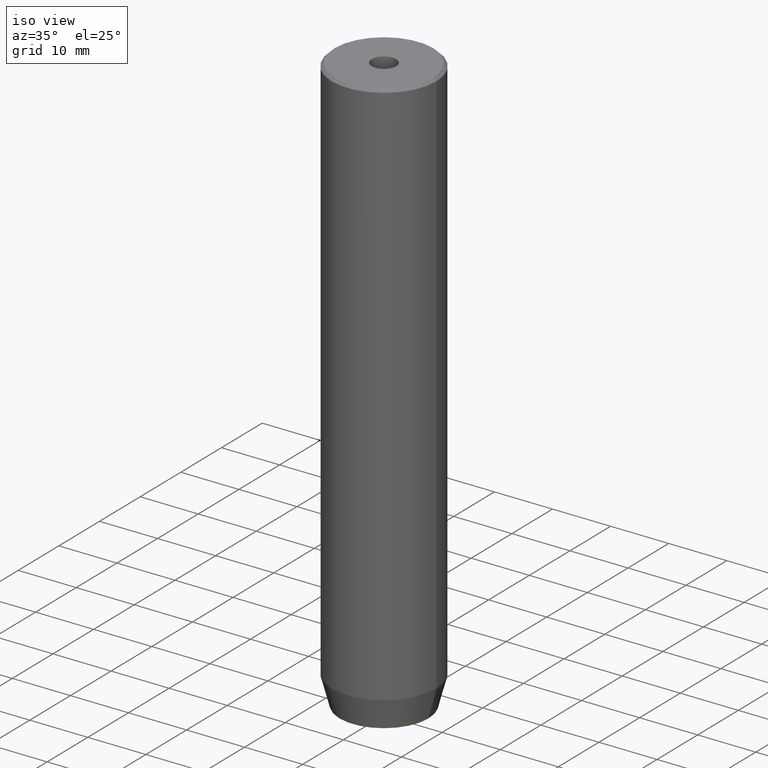
[diagram: clean part render]
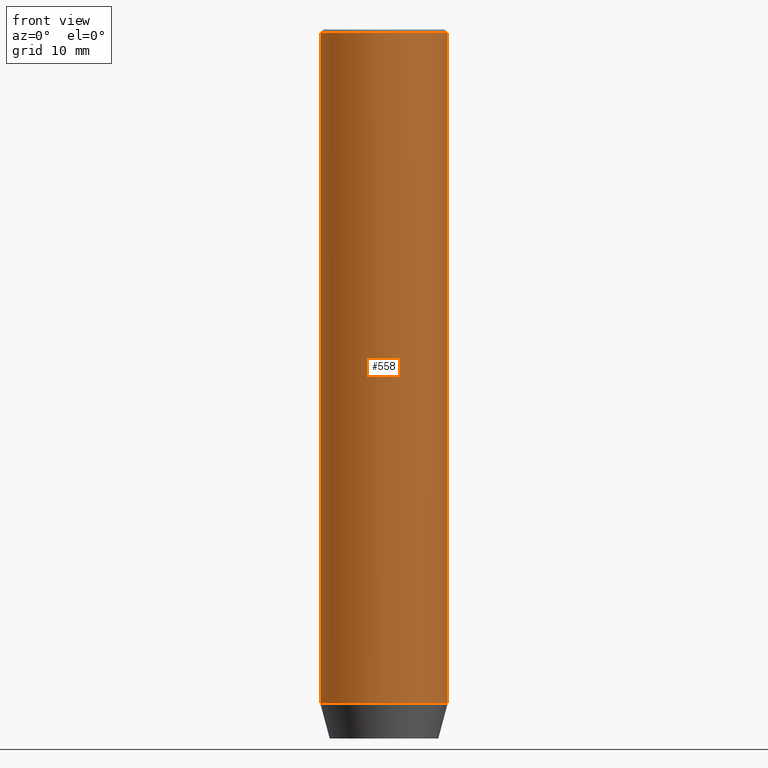
[diagram: tour spotlight — one face highlighted and labeled with its STEP entity id]
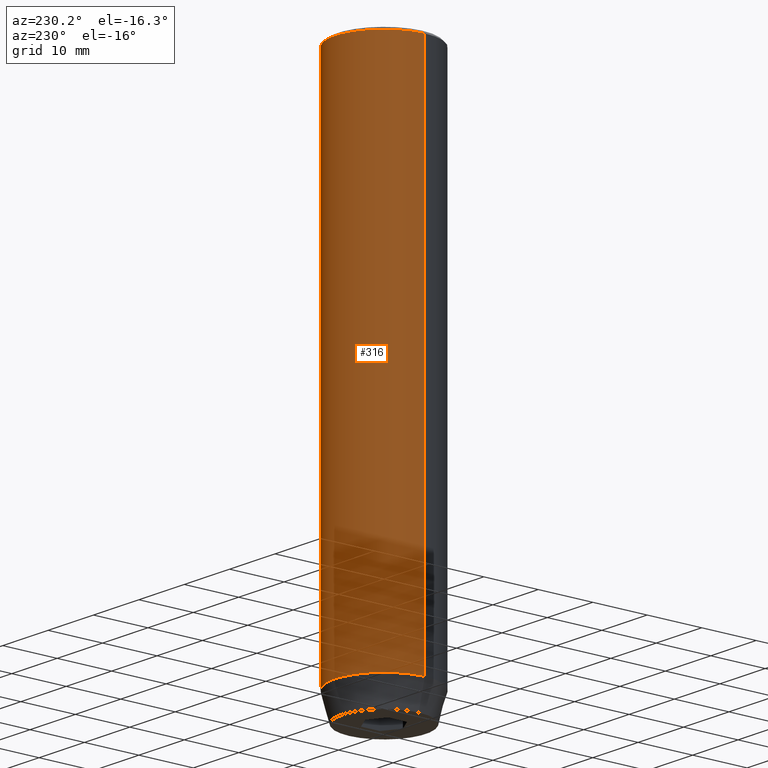
[diagram: tour spotlight — one face highlighted and labeled with its STEP entity id]
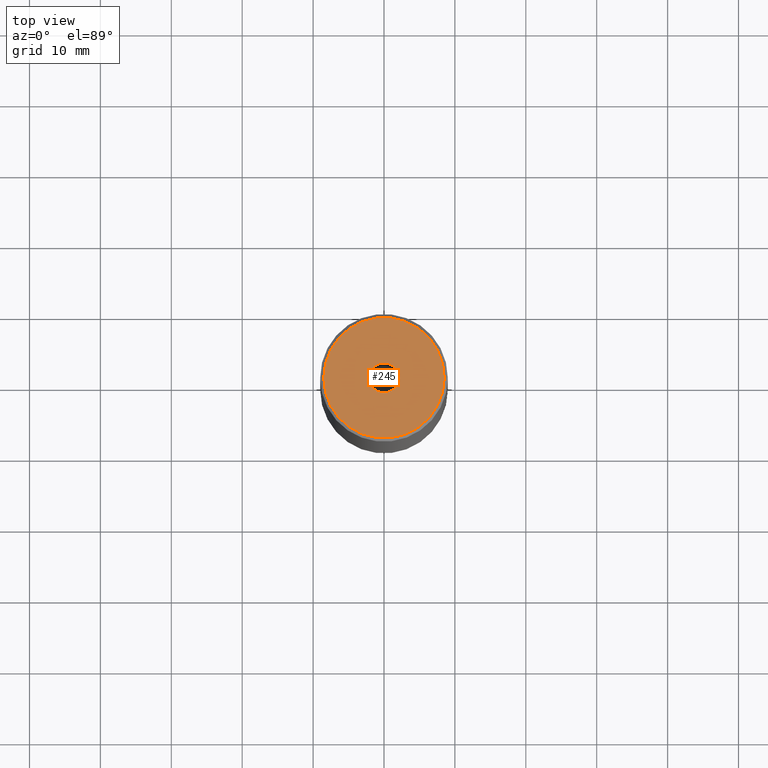
[diagram: tour spotlight — one face highlighted and labeled with its STEP entity id]
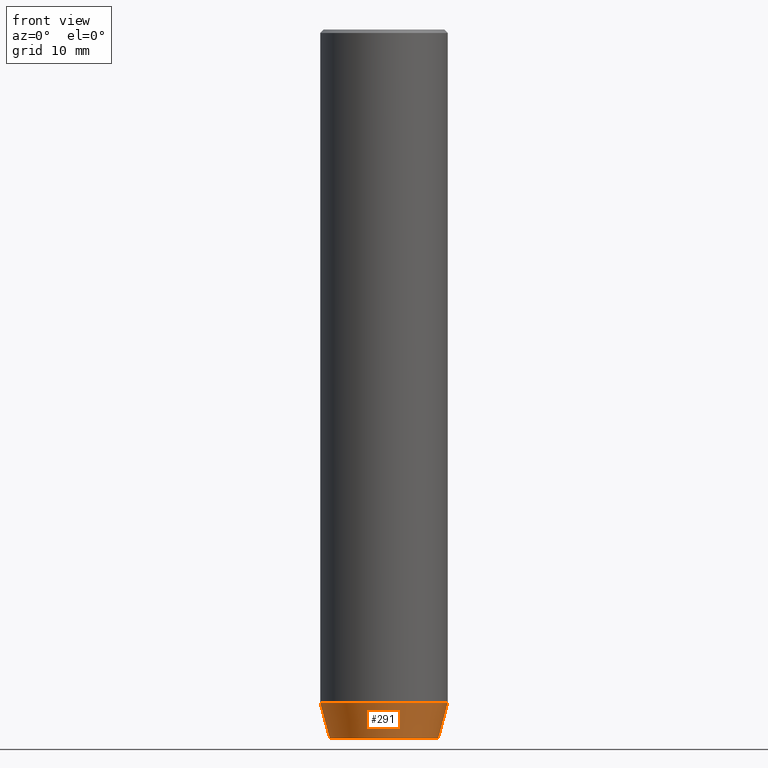
[diagram: tour spotlight — one face highlighted and labeled with its STEP entity id]
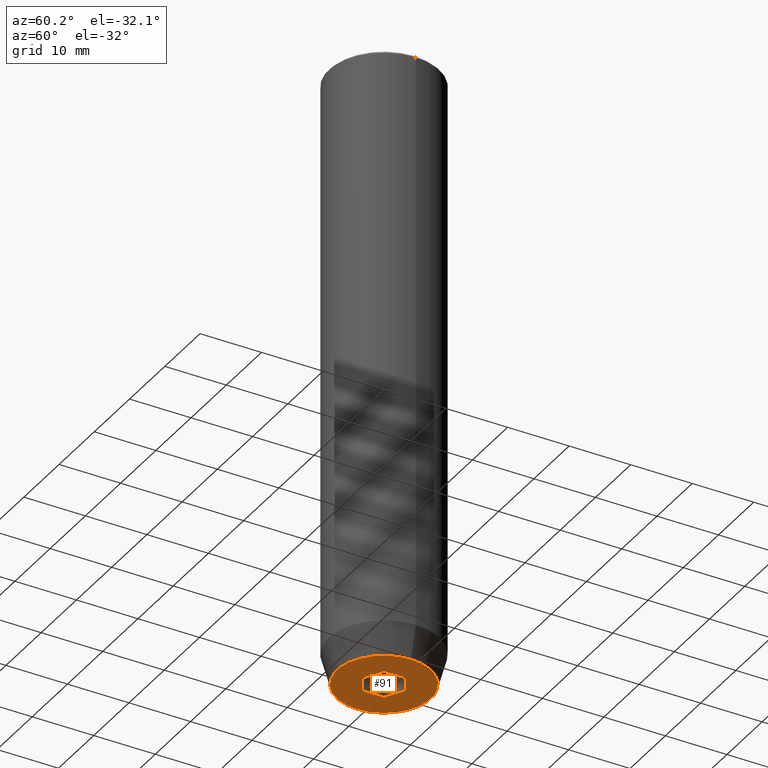
[diagram: tour spotlight — one face highlighted and labeled with its STEP entity id]
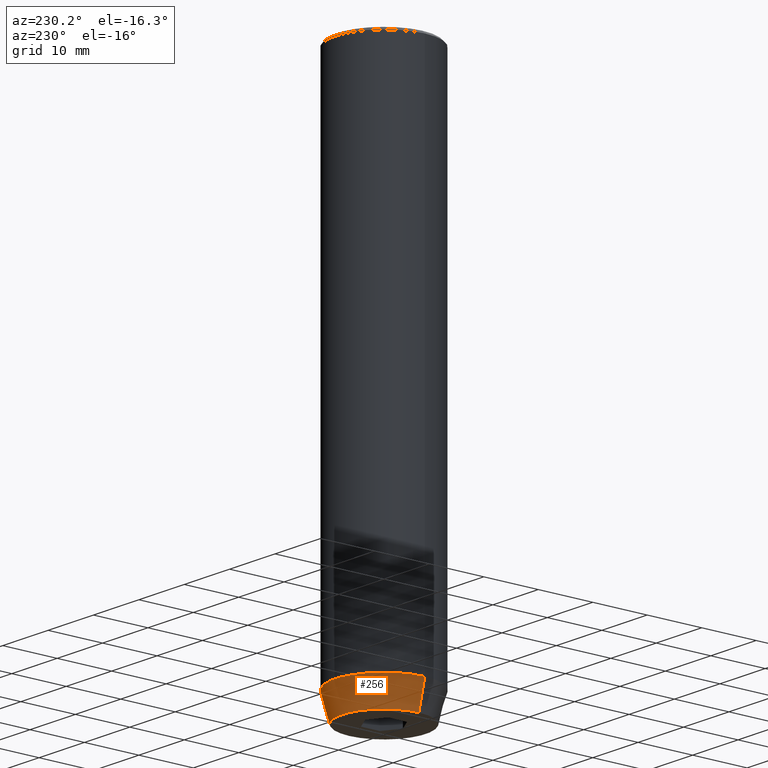
[diagram: tour spotlight — one face highlighted and labeled with its STEP entity id]
A machine part: a face-by-face anatomy tour. The part has 19 B-rep faces; the first image is the clean iso view, then the 6 largest visible faces are spotlighted one at a time (largest first), each with its STEP entity span.

Face 1 — front view, entity #558. In plain terms, the highlighted cylindrical surface (partial cylindrical patch) has radius 9 mm, axis along (-0, -0, 1).
Definition (entity closure, byte-faithful):
#19 = DIRECTION ( 'NONE',  ( 1.000000000000000000, 0.000000000000000000, 0.000000000000000000 ) ) ;
#43 = AXIS2_PLACEMENT_3D ( 'NONE', #346, #530, #219 ) ;
#49 = DIRECTION ( 'NONE',  ( 1.000000000000000000, 0.000000000000000000, 0.000000000000000000 ) ) ;
#53 = EDGE_CURVE ( 'NONE', #392, #407, #193, .T. ) ;
#58 = CARTESIAN_POINT ( 'NONE',  ( 0.000000000000000000, 0.000000000000000000, -95.00000000000000000 ) ) ;
#82 = DIRECTION ( 'NONE',  ( -0.000000000000000000, -0.000000000000000000, 1.000000000000000000 ) ) ;
#85 = VECTOR ( 'NONE', #100, 1000.000000000000000 ) ;
#87 = CARTESIAN_POINT ( 'NONE',  ( -9.000000000000000000, 1.102182119232617714E-15, -95.00000000000000000 ) ) ;
#100 = DIRECTION ( 'NONE',  ( -0.000000000000000000, -0.000000000000000000, 1.000000000000000000 ) ) ;
#123 = VECTOR ( 'NONE', #82, 1000.000000000000000 ) ;
#147 = EDGE_CURVE ( 'NONE', #392, #246, #388, .T. ) ;
#169 = ORIENTED_EDGE ( 'NONE', *, *, #147, .T. ) ;
#180 = CARTESIAN_POINT ( 'NONE',  ( 0.000000000000000000, 0.000000000000000000, 0.000000000000000000 ) ) ;
#192 = EDGE_LOOP ( 'NONE', ( #343, #169, #423, #450 ) ) ;
#193 = LINE ( 'NONE', #369, #85 ) ;
#214 = CARTESIAN_POINT ( 'NONE',  ( 9.000000000000000000, 0.000000000000000000, 0.000000000000000000 ) ) ;
#219 = DIRECTION ( 'NONE',  ( 1.000000000000000000, 0.000000000000000000, 0.000000000000000000 ) ) ;
#223 = AXIS2_PLACEMENT_3D ( 'NONE', #58, #244, #19 ) ;
#228 = FACE_OUTER_BOUND ( 'NONE', #192, .T. ) ;
#237 = DIRECTION ( 'NONE',  ( -0.000000000000000000, -0.000000000000000000, 1.000000000000000000 ) ) ;
#244 = DIRECTION ( 'NONE',  ( -0.000000000000000000, -0.000000000000000000, 1.000000000000000000 ) ) ;
#246 = VERTEX_POINT ( 'NONE', #303 ) ;
#303 = CARTESIAN_POINT ( 'NONE',  ( 9.000000000000000000, 0.000000000000000000, -95.00000000000000000 ) ) ;
#324 = EDGE_CURVE ( 'NONE', #471, #407, #444, .T. ) ;
#343 = ORIENTED_EDGE ( 'NONE', *, *, #53, .F. ) ;
#346 = CARTESIAN_POINT ( 'NONE',  ( 0.000000000000000000, 0.000000000000000000, -0.5000000000000091038 ) ) ;
#365 = CARTESIAN_POINT ( 'NONE',  ( 9.000000000000000000, 0.000000000000000000, -0.5000000000000091038 ) ) ;
#368 = EDGE_CURVE ( 'NONE', #246, #471, #401, .T. ) ;
#369 = CARTESIAN_POINT ( 'NONE',  ( -9.000000000000000000, 1.102182119232617714E-15, 0.000000000000000000 ) ) ;
#388 = CIRCLE ( 'NONE', #223, 9.000000000000000000 ) ;
#392 = VERTEX_POINT ( 'NONE', #87 ) ;
#401 = LINE ( 'NONE', #214, #123 ) ;
#407 = VERTEX_POINT ( 'NONE', #503 ) ;
#423 = ORIENTED_EDGE ( 'NONE', *, *, #368, .T. ) ;
#444 = CIRCLE ( 'NONE', #43, 9.000000000000000000 ) ;
#450 = ORIENTED_EDGE ( 'NONE', *, *, #324, .T. ) ;
#460 = CYLINDRICAL_SURFACE ( 'NONE', #516, 9.000000000000000000 ) ;
#471 = VERTEX_POINT ( 'NONE', #365 ) ;
#503 = CARTESIAN_POINT ( 'NONE',  ( -9.000000000000000000, 1.102182119232617714E-15, -0.5000000000000091038 ) ) ;
#516 = AXIS2_PLACEMENT_3D ( 'NONE', #180, #237, #49 ) ;
#530 = DIRECTION ( 'NONE',  ( 0.000000000000000000, 0.000000000000000000, -1.000000000000000000 ) ) ;
#558 = ADVANCED_FACE ( 'NONE', ( #228 ), #460, .T. ) ;

Face 2 — auxiliary view, entity #316. In plain terms, the highlighted cylindrical surface (partial cylindrical patch) has radius 9 mm, axis along (-0, -0, 1).
Definition (entity closure, byte-faithful):
#53 = EDGE_CURVE ( 'NONE', #392, #407, #193, .T. ) ;
#79 = DIRECTION ( 'NONE',  ( 1.000000000000000000, 0.000000000000000000, 0.000000000000000000 ) ) ;
#82 = DIRECTION ( 'NONE',  ( -0.000000000000000000, -0.000000000000000000, 1.000000000000000000 ) ) ;
#85 = VECTOR ( 'NONE', #100, 1000.000000000000000 ) ;
#87 = CARTESIAN_POINT ( 'NONE',  ( -9.000000000000000000, 1.102182119232617714E-15, -95.00000000000000000 ) ) ;
#100 = DIRECTION ( 'NONE',  ( -0.000000000000000000, -0.000000000000000000, 1.000000000000000000 ) ) ;
#120 = DIRECTION ( 'NONE',  ( -0.000000000000000000, -0.000000000000000000, 1.000000000000000000 ) ) ;
#123 = VECTOR ( 'NONE', #82, 1000.000000000000000 ) ;
#125 = EDGE_CURVE ( 'NONE', #407, #471, #572, .T. ) ;
#170 = CYLINDRICAL_SURFACE ( 'NONE', #371, 9.000000000000000000 ) ;
#172 = ORIENTED_EDGE ( 'NONE', *, *, #125, .T. ) ;
#173 = EDGE_CURVE ( 'NONE', #246, #392, #586, .T. ) ;
#178 = CARTESIAN_POINT ( 'NONE',  ( 0.000000000000000000, 0.000000000000000000, 0.000000000000000000 ) ) ;
#193 = LINE ( 'NONE', #369, #85 ) ;
#198 = DIRECTION ( 'NONE',  ( 1.000000000000000000, 0.000000000000000000, 0.000000000000000000 ) ) ;
#204 = DIRECTION ( 'NONE',  ( 0.000000000000000000, 0.000000000000000000, -1.000000000000000000 ) ) ;
#212 = AXIS2_PLACEMENT_3D ( 'NONE', #384, #422, #198 ) ;
#214 = CARTESIAN_POINT ( 'NONE',  ( 9.000000000000000000, 0.000000000000000000, 0.000000000000000000 ) ) ;
#221 = ORIENTED_EDGE ( 'NONE', *, *, #173, .T. ) ;
#246 = VERTEX_POINT ( 'NONE', #303 ) ;
#303 = CARTESIAN_POINT ( 'NONE',  ( 9.000000000000000000, 0.000000000000000000, -95.00000000000000000 ) ) ;
#316 = ADVANCED_FACE ( 'NONE', ( #535 ), #170, .T. ) ;
#331 = EDGE_LOOP ( 'NONE', ( #221, #349, #172, #462 ) ) ;
#349 = ORIENTED_EDGE ( 'NONE', *, *, #53, .T. ) ;
#365 = CARTESIAN_POINT ( 'NONE',  ( 9.000000000000000000, 0.000000000000000000, -0.5000000000000091038 ) ) ;
#368 = EDGE_CURVE ( 'NONE', #246, #471, #401, .T. ) ;
#369 = CARTESIAN_POINT ( 'NONE',  ( -9.000000000000000000, 1.102182119232617714E-15, 0.000000000000000000 ) ) ;
#371 = AXIS2_PLACEMENT_3D ( 'NONE', #178, #120, #79 ) ;
#378 = DIRECTION ( 'NONE',  ( 1.000000000000000000, 0.000000000000000000, 0.000000000000000000 ) ) ;
#384 = CARTESIAN_POINT ( 'NONE',  ( 0.000000000000000000, 0.000000000000000000, -95.00000000000000000 ) ) ;
#392 = VERTEX_POINT ( 'NONE', #87 ) ;
#401 = LINE ( 'NONE', #214, #123 ) ;
#407 = VERTEX_POINT ( 'NONE', #503 ) ;
#422 = DIRECTION ( 'NONE',  ( -0.000000000000000000, -0.000000000000000000, 1.000000000000000000 ) ) ;
#462 = ORIENTED_EDGE ( 'NONE', *, *, #368, .F. ) ;
#471 = VERTEX_POINT ( 'NONE', #365 ) ;
#477 = CARTESIAN_POINT ( 'NONE',  ( 0.000000000000000000, 0.000000000000000000, -0.5000000000000091038 ) ) ;
#503 = CARTESIAN_POINT ( 'NONE',  ( -9.000000000000000000, 1.102182119232617714E-15, -0.5000000000000091038 ) ) ;
#517 = AXIS2_PLACEMENT_3D ( 'NONE', #477, #204, #378 ) ;
#535 = FACE_OUTER_BOUND ( 'NONE', #331, .T. ) ;
#572 = CIRCLE ( 'NONE', #517, 9.000000000000000000 ) ;
#586 = CIRCLE ( 'NONE', #212, 9.000000000000000000 ) ;

Face 3 — top view, entity #245. In plain terms, the highlighted planar face has unit normal (0, -0, 1).
Definition (entity closure, byte-faithful):
#10 = DIRECTION ( 'NONE',  ( -0.000000000000000000, -0.000000000000000000, 1.000000000000000000 ) ) ;
#41 = EDGE_CURVE ( 'NONE', #480, #128, #339, .T. ) ;
#54 = DIRECTION ( 'NONE',  ( 1.000000000000000000, 0.000000000000000000, 0.000000000000000000 ) ) ;
#63 = DIRECTION ( 'NONE',  ( 1.000000000000000000, 0.000000000000000000, 0.000000000000000000 ) ) ;
#95 = DIRECTION ( 'NONE',  ( -0.000000000000000000, -0.000000000000000000, 1.000000000000000000 ) ) ;
#96 = ORIENTED_EDGE ( 'NONE', *, *, #436, .F. ) ;
#118 = FACE_OUTER_BOUND ( 'NONE', #194, .T. ) ;
#128 = VERTEX_POINT ( 'NONE', #466 ) ;
#132 = DIRECTION ( 'NONE',  ( 1.000000000000000000, 0.000000000000000000, 0.000000000000000000 ) ) ;
#138 = CARTESIAN_POINT ( 'NONE',  ( 0.000000000000000000, 0.000000000000000000, -1.990051048614449116E-16 ) ) ;
#141 = CARTESIAN_POINT ( 'NONE',  ( 0.000000000000000000, 0.000000000000000000, -1.990051048614449116E-16 ) ) ;
#194 = EDGE_LOOP ( 'NONE', ( #508, #235 ) ) ;
#209 = DIRECTION ( 'NONE',  ( 0.000000000000000000, -0.000000000000000000, 1.000000000000000000 ) ) ;
#226 = EDGE_CURVE ( 'NONE', #128, #480, #370, .T. ) ;
#231 = DIRECTION ( 'NONE',  ( -0.000000000000000000, -0.000000000000000000, 1.000000000000000000 ) ) ;
#235 = ORIENTED_EDGE ( 'NONE', *, *, #41, .T. ) ;
#240 = VERTEX_POINT ( 'NONE', #385 ) ;
#245 = ADVANCED_FACE ( 'NONE', ( #338, #118 ), #396, .T. ) ;
#260 = CIRCLE ( 'NONE', #399, 2.099999999999998757 ) ;
#263 = DIRECTION ( 'NONE',  ( 1.000000000000000000, 0.000000000000000000, 0.000000000000000000 ) ) ;
#287 = DIRECTION ( 'NONE',  ( -0.000000000000000000, -0.000000000000000000, 1.000000000000000000 ) ) ;
#295 = AXIS2_PLACEMENT_3D ( 'NONE', #138, #231, #132 ) ;
#304 = ORIENTED_EDGE ( 'NONE', *, *, #583, .F. ) ;
#313 = CARTESIAN_POINT ( 'NONE',  ( 8.499999999999980460, 1.071565949253932744E-15, 0.000000000000000000 ) ) ;
#338 = FACE_BOUND ( 'NONE', #341, .T. ) ;
#339 = CIRCLE ( 'NONE', #429, 8.499999999999980460 ) ;
#341 = EDGE_LOOP ( 'NONE', ( #304, #96 ) ) ;
#357 = AXIS2_PLACEMENT_3D ( 'NONE', #445, #209, #263 ) ;
#370 = CIRCLE ( 'NONE', #564, 8.499999999999980460 ) ;
#385 = CARTESIAN_POINT ( 'NONE',  ( 2.099999999999998757, 0.000000000000000000, -1.990051048614449116E-16 ) ) ;
#396 = PLANE ( 'NONE',  #357 ) ;
#398 = CIRCLE ( 'NONE', #295, 2.099999999999998757 ) ;
#399 = AXIS2_PLACEMENT_3D ( 'NONE', #141, #95, #539 ) ;
#418 = CARTESIAN_POINT ( 'NONE',  ( 0.000000000000000000, 0.000000000000000000, 0.000000000000000000 ) ) ;
#429 = AXIS2_PLACEMENT_3D ( 'NONE', #418, #10, #54 ) ;
#436 = EDGE_CURVE ( 'NONE', #511, #240, #398, .T. ) ;
#445 = CARTESIAN_POINT ( 'NONE',  ( 0.000000000000000000, 0.000000000000000000, 0.000000000000000000 ) ) ;
#466 = CARTESIAN_POINT ( 'NONE',  ( -8.499999999999980460, 0.000000000000000000, 0.000000000000000000 ) ) ;
#470 = CARTESIAN_POINT ( 'NONE',  ( 0.000000000000000000, 0.000000000000000000, 0.000000000000000000 ) ) ;
#480 = VERTEX_POINT ( 'NONE', #313 ) ;
#508 = ORIENTED_EDGE ( 'NONE', *, *, #226, .T. ) ;
#511 = VERTEX_POINT ( 'NONE', #549 ) ;
#539 = DIRECTION ( 'NONE',  ( 1.000000000000000000, 0.000000000000000000, 0.000000000000000000 ) ) ;
#549 = CARTESIAN_POINT ( 'NONE',  ( -2.099999999999998757, 2.571758278209440478E-16, -1.990051048614449116E-16 ) ) ;
#564 = AXIS2_PLACEMENT_3D ( 'NONE', #470, #287, #63 ) ;
#583 = EDGE_CURVE ( 'NONE', #240, #511, #260, .T. ) ;

Face 4 — front view, entity #291. In plain terms, the highlighted conical surface has half-angle 15 deg.
Definition (entity closure, byte-faithful):
#18 = EDGE_CURVE ( 'NONE', #52, #363, #107, .T. ) ;
#19 = DIRECTION ( 'NONE',  ( 1.000000000000000000, 0.000000000000000000, 0.000000000000000000 ) ) ;
#31 = LINE ( 'NONE', #353, #113 ) ;
#52 = VERTEX_POINT ( 'NONE', #329 ) ;
#58 = CARTESIAN_POINT ( 'NONE',  ( 0.000000000000000000, 0.000000000000000000, -95.00000000000000000 ) ) ;
#69 = DIRECTION ( 'NONE',  ( -0.000000000000000000, -0.000000000000000000, 1.000000000000000000 ) ) ;
#87 = CARTESIAN_POINT ( 'NONE',  ( -9.000000000000000000, 1.102182119232617714E-15, -95.00000000000000000 ) ) ;
#107 = CIRCLE ( 'NONE', #443, 7.660254037844380193 ) ;
#113 = VECTOR ( 'NONE', #129, 1000.000000000000114 ) ;
#129 = DIRECTION ( 'NONE',  ( 0.2588190451025214611, 0.000000000000000000, 0.9659258262890679791 ) ) ;
#147 = EDGE_CURVE ( 'NONE', #392, #246, #388, .T. ) ;
#149 = ORIENTED_EDGE ( 'NONE', *, *, #147, .F. ) ;
#150 = ORIENTED_EDGE ( 'NONE', *, *, #199, .F. ) ;
#158 = CARTESIAN_POINT ( 'NONE',  ( 0.000000000000000000, 0.000000000000000000, -100.0000000000000000 ) ) ;
#191 = ORIENTED_EDGE ( 'NONE', *, *, #375, .T. ) ;
#199 = EDGE_CURVE ( 'NONE', #52, #392, #565, .T. ) ;
#222 = CARTESIAN_POINT ( 'NONE',  ( 7.660254037844380193, 0.000000000000000000, -100.0000000000000000 ) ) ;
#223 = AXIS2_PLACEMENT_3D ( 'NONE', #58, #244, #19 ) ;
#229 = ORIENTED_EDGE ( 'NONE', *, *, #18, .T. ) ;
#244 = DIRECTION ( 'NONE',  ( -0.000000000000000000, -0.000000000000000000, 1.000000000000000000 ) ) ;
#246 = VERTEX_POINT ( 'NONE', #303 ) ;
#288 = EDGE_LOOP ( 'NONE', ( #150, #229, #191, #149 ) ) ;
#291 = ADVANCED_FACE ( 'NONE', ( #577 ), #302, .T. ) ;
#298 = DIRECTION ( 'NONE',  ( -0.000000000000000000, -0.000000000000000000, 1.000000000000000000 ) ) ;
#302 = CONICAL_SURFACE ( 'NONE', #533, 9.000000000000000000, 0.2617993877991502405 ) ;
#303 = CARTESIAN_POINT ( 'NONE',  ( 9.000000000000000000, 0.000000000000000000, -95.00000000000000000 ) ) ;
#329 = CARTESIAN_POINT ( 'NONE',  ( -7.660254037844380193, 1.020146339021394272E-15, -100.0000000000000000 ) ) ;
#353 = CARTESIAN_POINT ( 'NONE',  ( 9.000000000000000000, 0.000000000000000000, -95.00000000000000000 ) ) ;
#363 = VERTEX_POINT ( 'NONE', #222 ) ;
#375 = EDGE_CURVE ( 'NONE', #363, #246, #31, .T. ) ;
#388 = CIRCLE ( 'NONE', #223, 9.000000000000000000 ) ;
#392 = VERTEX_POINT ( 'NONE', #87 ) ;
#394 = CARTESIAN_POINT ( 'NONE',  ( 0.000000000000000000, 0.000000000000000000, -95.00000000000000000 ) ) ;
#410 = VECTOR ( 'NONE', #567, 1000.000000000000114 ) ;
#443 = AXIS2_PLACEMENT_3D ( 'NONE', #158, #69, #512 ) ;
#512 = DIRECTION ( 'NONE',  ( 1.000000000000000000, 0.000000000000000000, 0.000000000000000000 ) ) ;
#533 = AXIS2_PLACEMENT_3D ( 'NONE', #394, #298, #582 ) ;
#565 = LINE ( 'NONE', #568, #410 ) ;
#567 = DIRECTION ( 'NONE',  ( -0.2588190451025214611, 3.169619151431774186E-17, 0.9659258262890679791 ) ) ;
#568 = CARTESIAN_POINT ( 'NONE',  ( -9.000000000000000000, 1.102182119232617714E-15, -95.00000000000000000 ) ) ;
#577 = FACE_OUTER_BOUND ( 'NONE', #288, .T. ) ;
#582 = DIRECTION ( 'NONE',  ( 1.000000000000000000, 0.000000000000000000, 0.000000000000000000 ) ) ;

Face 5 — auxiliary view, entity #91. In plain terms, the highlighted planar face has unit normal (0, 0, -1).
Definition (entity closure, byte-faithful):
#6 = VECTOR ( 'NONE', #280, 1000.000000000000000 ) ;
#14 = CARTESIAN_POINT ( 'NONE',  ( -2.168404344971008868E-16, -3.464101615137754830, -100.0000000000000000 ) ) ;
#16 = DIRECTION ( 'NONE',  ( -0.8660254037844385966, -0.5000000000000001110, 0.000000000000000000 ) ) ;
#18 = EDGE_CURVE ( 'NONE', #52, #363, #107, .T. ) ;
#48 = DIRECTION ( 'NONE',  ( -1.000000000000000000, 0.000000000000000000, -0.000000000000000000 ) ) ;
#52 = VERTEX_POINT ( 'NONE', #329 ) ;
#64 = VECTOR ( 'NONE', #145, 1000.000000000000000 ) ;
#69 = DIRECTION ( 'NONE',  ( -0.000000000000000000, -0.000000000000000000, 1.000000000000000000 ) ) ;
#74 = ORIENTED_EDGE ( 'NONE', *, *, #448, .F. ) ;
#80 = EDGE_CURVE ( 'NONE', #177, #272, #312, .T. ) ;
#84 = CARTESIAN_POINT ( 'NONE',  ( -3.000000000000000000, -1.732050807568877859, -100.0000000000000000 ) ) ;
#90 = ORIENTED_EDGE ( 'NONE', *, *, #415, .F. ) ;
#91 = ADVANCED_FACE ( 'NONE', ( #459, #151 ), #361, .T. ) ;
#107 = CIRCLE ( 'NONE', #443, 7.660254037844380193 ) ;
#121 = EDGE_LOOP ( 'NONE', ( #548, #162 ) ) ;
#134 = VECTOR ( 'NONE', #16, 1000.000000000000000 ) ;
#135 = VECTOR ( 'NONE', #386, 1000.000000000000000 ) ;
#143 = DIRECTION ( 'NONE',  ( 0.000000000000000000, 0.000000000000000000, -1.000000000000000000 ) ) ;
#145 = DIRECTION ( 'NONE',  ( 0.8660254037844385966, -0.5000000000000001110, 0.000000000000000000 ) ) ;
#148 = CARTESIAN_POINT ( 'NONE',  ( 0.000000000000000000, 3.464101615137754386, -100.0000000000000000 ) ) ;
#151 = FACE_OUTER_BOUND ( 'NONE', #121, .T. ) ;
#155 = EDGE_CURVE ( 'NONE', #514, #177, #289, .T. ) ;
#158 = CARTESIAN_POINT ( 'NONE',  ( 0.000000000000000000, 0.000000000000000000, -100.0000000000000000 ) ) ;
#162 = ORIENTED_EDGE ( 'NONE', *, *, #18, .F. ) ;
#177 = VERTEX_POINT ( 'NONE', #14 ) ;
#184 = CARTESIAN_POINT ( 'NONE',  ( -3.000000000000000444, -7.511572993685800087E-16, -100.0000000000000000 ) ) ;
#188 = LINE ( 'NONE', #184, #6 ) ;
#211 = EDGE_LOOP ( 'NONE', ( #74, #435, #507, #416, #279, #90 ) ) ;
#216 = LINE ( 'NONE', #342, #135 ) ;
#222 = CARTESIAN_POINT ( 'NONE',  ( 7.660254037844380193, 0.000000000000000000, -100.0000000000000000 ) ) ;
#252 = EDGE_CURVE ( 'NONE', #433, #514, #216, .T. ) ;
#257 = DIRECTION ( 'NONE',  ( -0.000000000000000000, -0.000000000000000000, 1.000000000000000000 ) ) ;
#267 = CARTESIAN_POINT ( 'NONE',  ( 0.000000000000000000, 0.000000000000000000, -100.0000000000000000 ) ) ;
#269 = CARTESIAN_POINT ( 'NONE',  ( -3.000000000000000888, 1.732050807568876527, -100.0000000000000000 ) ) ;
#270 = LINE ( 'NONE', #417, #64 ) ;
#272 = VERTEX_POINT ( 'NONE', #84 ) ;
#279 = ORIENTED_EDGE ( 'NONE', *, *, #252, .F. ) ;
#280 = DIRECTION ( 'NONE',  ( -2.503857664561932376E-16, 1.000000000000000000, 0.000000000000000000 ) ) ;
#289 = LINE ( 'NONE', #509, #134 ) ;
#312 = LINE ( 'NONE', #474, #320 ) ;
#320 = VECTOR ( 'NONE', #520, 1000.000000000000000 ) ;
#325 = CARTESIAN_POINT ( 'NONE',  ( 0.000000000000000000, 7.660254037844380193, -100.0000000000000000 ) ) ;
#329 = CARTESIAN_POINT ( 'NONE',  ( -7.660254037844380193, 1.020146339021394272E-15, -100.0000000000000000 ) ) ;
#342 = CARTESIAN_POINT ( 'NONE',  ( 3.000000000000000000, 0.000000000000000000, -100.0000000000000000 ) ) ;
#354 = CARTESIAN_POINT ( 'NONE',  ( 3.000000000000000000, -1.732050807568876527, -100.0000000000000000 ) ) ;
#356 = CARTESIAN_POINT ( 'NONE',  ( 3.000000000000000000, 1.732050807568876527, -100.0000000000000000 ) ) ;
#361 = PLANE ( 'NONE',  #465 ) ;
#363 = VERTEX_POINT ( 'NONE', #222 ) ;
#366 = VECTOR ( 'NONE', #455, 999.9999999999998863 ) ;
#386 = DIRECTION ( 'NONE',  ( 0.000000000000000000, -1.000000000000000000, 0.000000000000000000 ) ) ;
#387 = EDGE_CURVE ( 'NONE', #363, #52, #453, .T. ) ;
#415 = EDGE_CURVE ( 'NONE', #559, #433, #270, .T. ) ;
#416 = ORIENTED_EDGE ( 'NONE', *, *, #155, .F. ) ;
#417 = CARTESIAN_POINT ( 'NONE',  ( 1.500000000000000222, 2.598076211353315568, -100.0000000000000000 ) ) ;
#432 = DIRECTION ( 'NONE',  ( 1.000000000000000000, 0.000000000000000000, 0.000000000000000000 ) ) ;
#433 = VERTEX_POINT ( 'NONE', #356 ) ;
#435 = ORIENTED_EDGE ( 'NONE', *, *, #469, .F. ) ;
#441 = AXIS2_PLACEMENT_3D ( 'NONE', #267, #257, #432 ) ;
#443 = AXIS2_PLACEMENT_3D ( 'NONE', #158, #69, #512 ) ;
#448 = EDGE_CURVE ( 'NONE', #487, #559, #506, .T. ) ;
#453 = CIRCLE ( 'NONE', #441, 7.660254037844380193 ) ;
#455 = DIRECTION ( 'NONE',  ( 0.8660254037844387076, 0.4999999999999999445, 0.000000000000000000 ) ) ;
#459 = FACE_BOUND ( 'NONE', #211, .T. ) ;
#465 = AXIS2_PLACEMENT_3D ( 'NONE', #325, #143, #48 ) ;
#469 = EDGE_CURVE ( 'NONE', #272, #487, #188, .T. ) ;
#474 = CARTESIAN_POINT ( 'NONE',  ( -1.500000000000000666, -2.598076211353316456, -100.0000000000000000 ) ) ;
#487 = VERTEX_POINT ( 'NONE', #269 ) ;
#494 = CARTESIAN_POINT ( 'NONE',  ( -1.499999999999999556, 2.598076211353316012, -100.0000000000000000 ) ) ;
#506 = LINE ( 'NONE', #494, #366 ) ;
#507 = ORIENTED_EDGE ( 'NONE', *, *, #80, .F. ) ;
#509 = CARTESIAN_POINT ( 'NONE',  ( 1.500000000000000222, -2.598076211353315568, -100.0000000000000000 ) ) ;
#512 = DIRECTION ( 'NONE',  ( 1.000000000000000000, 0.000000000000000000, 0.000000000000000000 ) ) ;
#514 = VERTEX_POINT ( 'NONE', #354 ) ;
#520 = DIRECTION ( 'NONE',  ( -0.8660254037844385966, 0.5000000000000001110, 0.000000000000000000 ) ) ;
#548 = ORIENTED_EDGE ( 'NONE', *, *, #387, .F. ) ;
#559 = VERTEX_POINT ( 'NONE', #148 ) ;

Face 6 — auxiliary view, entity #256. In plain terms, the highlighted conical surface has half-angle 15 deg.
Definition (entity closure, byte-faithful):
#31 = LINE ( 'NONE', #353, #113 ) ;
#52 = VERTEX_POINT ( 'NONE', #329 ) ;
#55 = ORIENTED_EDGE ( 'NONE', *, *, #173, .F. ) ;
#78 = ORIENTED_EDGE ( 'NONE', *, *, #375, .F. ) ;
#87 = CARTESIAN_POINT ( 'NONE',  ( -9.000000000000000000, 1.102182119232617714E-15, -95.00000000000000000 ) ) ;
#108 = CONICAL_SURFACE ( 'NONE', #233, 9.000000000000000000, 0.2617993877991502405 ) ;
#113 = VECTOR ( 'NONE', #129, 1000.000000000000114 ) ;
#129 = DIRECTION ( 'NONE',  ( 0.2588190451025214611, 0.000000000000000000, 0.9659258262890679791 ) ) ;
#173 = EDGE_CURVE ( 'NONE', #246, #392, #586, .T. ) ;
#176 = DIRECTION ( 'NONE',  ( -0.000000000000000000, -0.000000000000000000, 1.000000000000000000 ) ) ;
#198 = DIRECTION ( 'NONE',  ( 1.000000000000000000, 0.000000000000000000, 0.000000000000000000 ) ) ;
#199 = EDGE_CURVE ( 'NONE', #52, #392, #565, .T. ) ;
#212 = AXIS2_PLACEMENT_3D ( 'NONE', #384, #422, #198 ) ;
#222 = CARTESIAN_POINT ( 'NONE',  ( 7.660254037844380193, 0.000000000000000000, -100.0000000000000000 ) ) ;
#233 = AXIS2_PLACEMENT_3D ( 'NONE', #439, #176, #434 ) ;
#246 = VERTEX_POINT ( 'NONE', #303 ) ;
#256 = ADVANCED_FACE ( 'NONE', ( #528 ), #108, .T. ) ;
#257 = DIRECTION ( 'NONE',  ( -0.000000000000000000, -0.000000000000000000, 1.000000000000000000 ) ) ;
#267 = CARTESIAN_POINT ( 'NONE',  ( 0.000000000000000000, 0.000000000000000000, -100.0000000000000000 ) ) ;
#303 = CARTESIAN_POINT ( 'NONE',  ( 9.000000000000000000, 0.000000000000000000, -95.00000000000000000 ) ) ;
#329 = CARTESIAN_POINT ( 'NONE',  ( -7.660254037844380193, 1.020146339021394272E-15, -100.0000000000000000 ) ) ;
#353 = CARTESIAN_POINT ( 'NONE',  ( 9.000000000000000000, 0.000000000000000000, -95.00000000000000000 ) ) ;
#363 = VERTEX_POINT ( 'NONE', #222 ) ;
#364 = ORIENTED_EDGE ( 'NONE', *, *, #199, .T. ) ;
#375 = EDGE_CURVE ( 'NONE', #363, #246, #31, .T. ) ;
#384 = CARTESIAN_POINT ( 'NONE',  ( 0.000000000000000000, 0.000000000000000000, -95.00000000000000000 ) ) ;
#387 = EDGE_CURVE ( 'NONE', #363, #52, #453, .T. ) ;
#392 = VERTEX_POINT ( 'NONE', #87 ) ;
#410 = VECTOR ( 'NONE', #567, 1000.000000000000114 ) ;
#422 = DIRECTION ( 'NONE',  ( -0.000000000000000000, -0.000000000000000000, 1.000000000000000000 ) ) ;
#432 = DIRECTION ( 'NONE',  ( 1.000000000000000000, 0.000000000000000000, 0.000000000000000000 ) ) ;
#434 = DIRECTION ( 'NONE',  ( 1.000000000000000000, 0.000000000000000000, 0.000000000000000000 ) ) ;
#439 = CARTESIAN_POINT ( 'NONE',  ( 0.000000000000000000, 0.000000000000000000, -95.00000000000000000 ) ) ;
#441 = AXIS2_PLACEMENT_3D ( 'NONE', #267, #257, #432 ) ;
#453 = CIRCLE ( 'NONE', #441, 7.660254037844380193 ) ;
#522 = ORIENTED_EDGE ( 'NONE', *, *, #387, .T. ) ;
#528 = FACE_OUTER_BOUND ( 'NONE', #560, .T. ) ;
#560 = EDGE_LOOP ( 'NONE', ( #522, #364, #55, #78 ) ) ;
#565 = LINE ( 'NONE', #568, #410 ) ;
#567 = DIRECTION ( 'NONE',  ( -0.2588190451025214611, 3.169619151431774186E-17, 0.9659258262890679791 ) ) ;
#568 = CARTESIAN_POINT ( 'NONE',  ( -9.000000000000000000, 1.102182119232617714E-15, -95.00000000000000000 ) ) ;
#586 = CIRCLE ( 'NONE', #212, 9.000000000000000000 ) ;